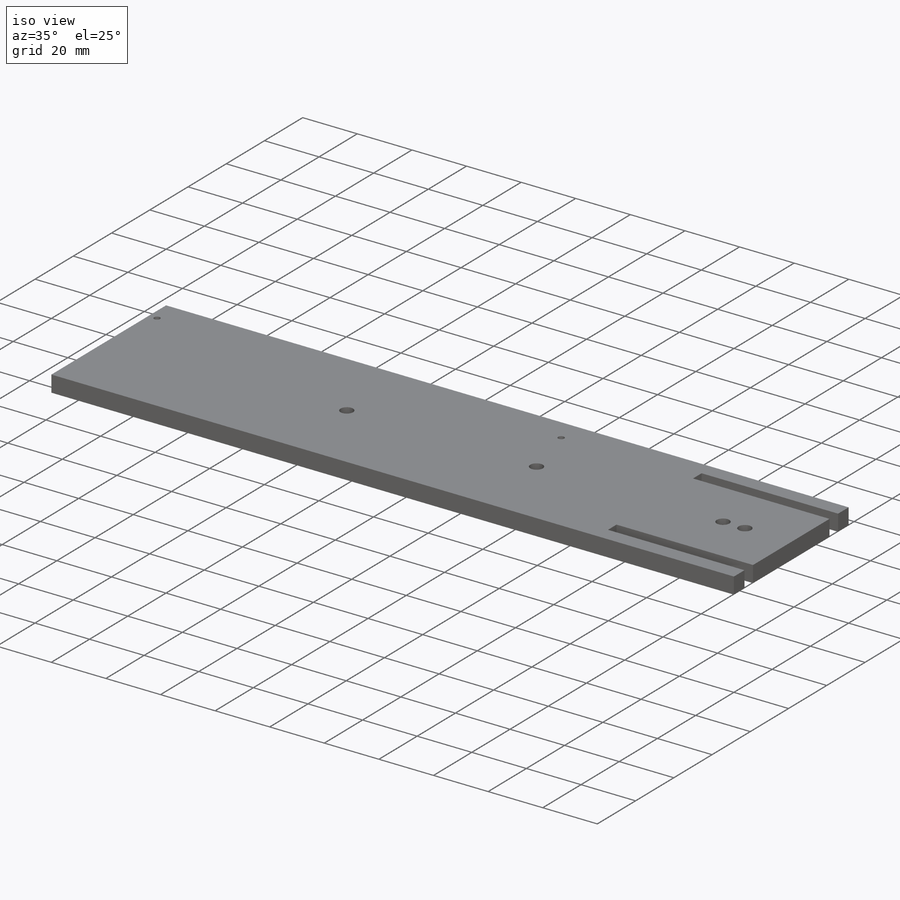
[diagram: iso view]
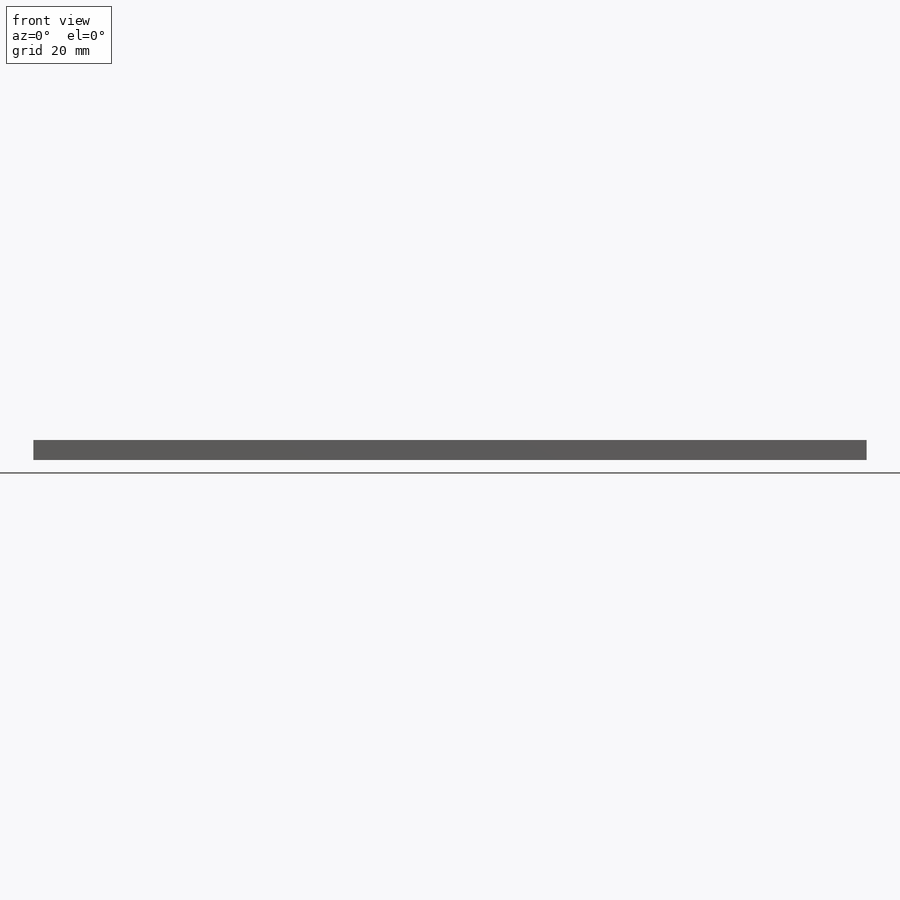
[diagram: front view]
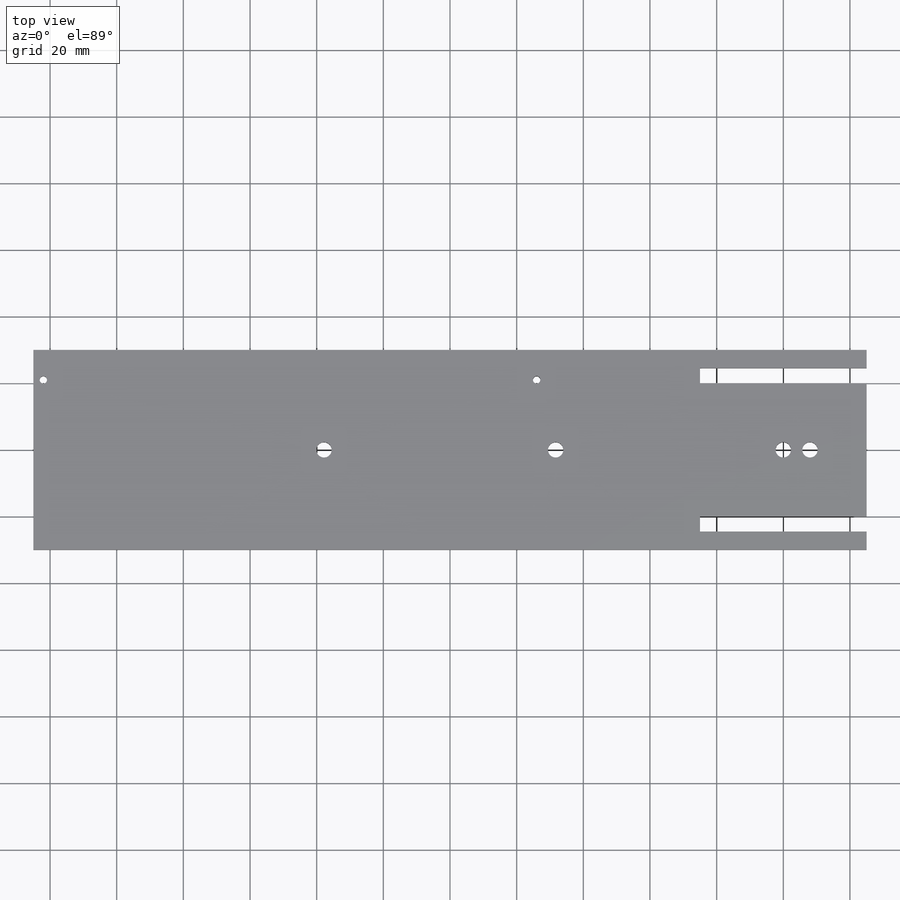
[diagram: top view]
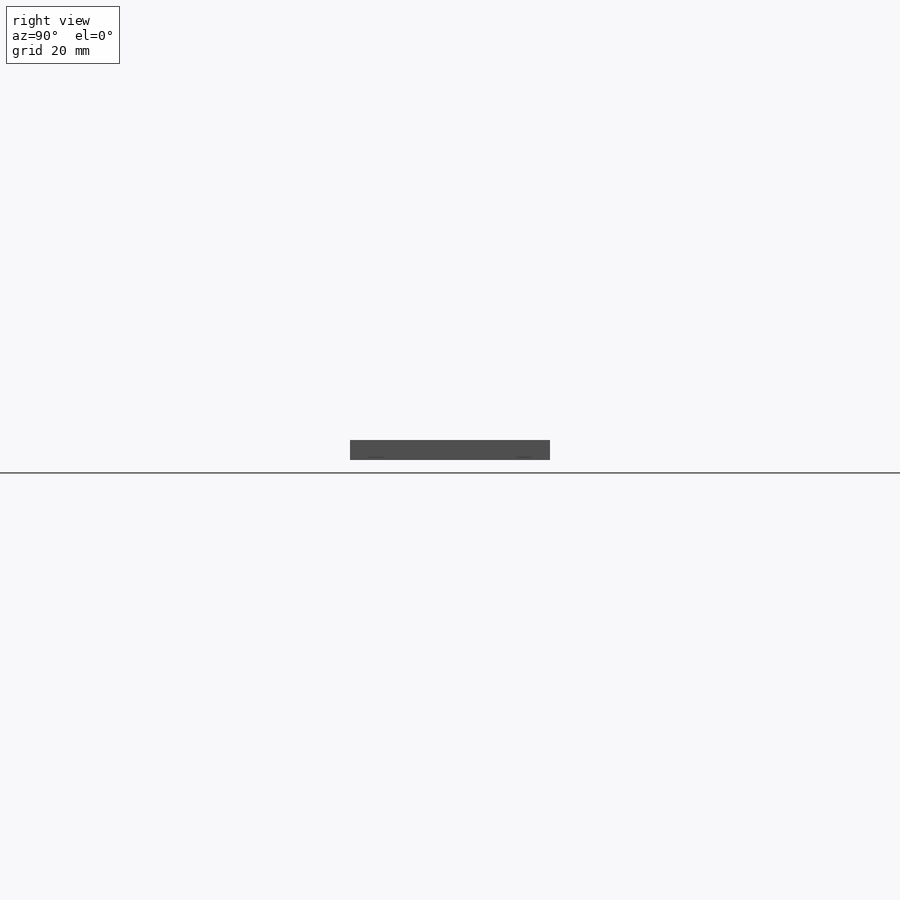
[diagram: right view]
SOLIDWORKS PART (.sldprt)
format: sldprt  version: not decoded by parser v0  size: 136,192 bytes
history: native  units: mm
features: sketch x3, cut_extrude x2, material x1, extrude x1 (+11 scaffold rows collapsed)
feature tree (18):
  scaffold x11  (default folders/planes/origin — collapsed)
  material  "Material <not specified>"
  sketch  "Sketch1"  dims[c1.D3=~18.770691mm c1.D5=4.6mm c1.D6=4.6mm c1.D8=4.6mm c1.D9=~22.704155mm c1.D10=4.6mm c1.D1=~50.165082mm c1.D2=~169.725195mm c2.D1=60.0mm c2.D2=250.0mm c2.D3=17.0mm c2.D4=8.0mm c2.D7=68.3mm c2.D9=137.8mm]
  extrude  "Boss-Extrude1"  Depth=6mm
  sketch  "Sketch2"  dims[c1.D1=~6.532335mm c1.D2=~26.469787mm c2.D1=~9.283848mm c2.D2=~26.469787mm c3.D1=20.0mm c3.D2=20.0mm c3.D3=4.5mm c3.D4=4.5mm c3.D5=50.0mm c3.D6=50.0mm]
  cut_extrude  "Cut-Extrude1"  Depth=6mm
  sketch  "Sketch3"  dims[c1.D1=~14.893301mm c1.D2=2.2mm c1.D3=2.2mm c1.D5=2.2mm c1.D6=2.2mm c2.D1=3.0mm c2.D3=21.0mm c2.D4=21.0mm c2.D6=148.0mm]
  cut_extrude  "Cut-Extrude2"  Depth=10mm
decode coverage: 6 of 6 modeling features carry decoded parameters
note: ~ marks probable driven/reference dimensions
note: suppression state not decoded; provenance and decode notes live in map.json
